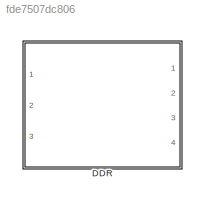
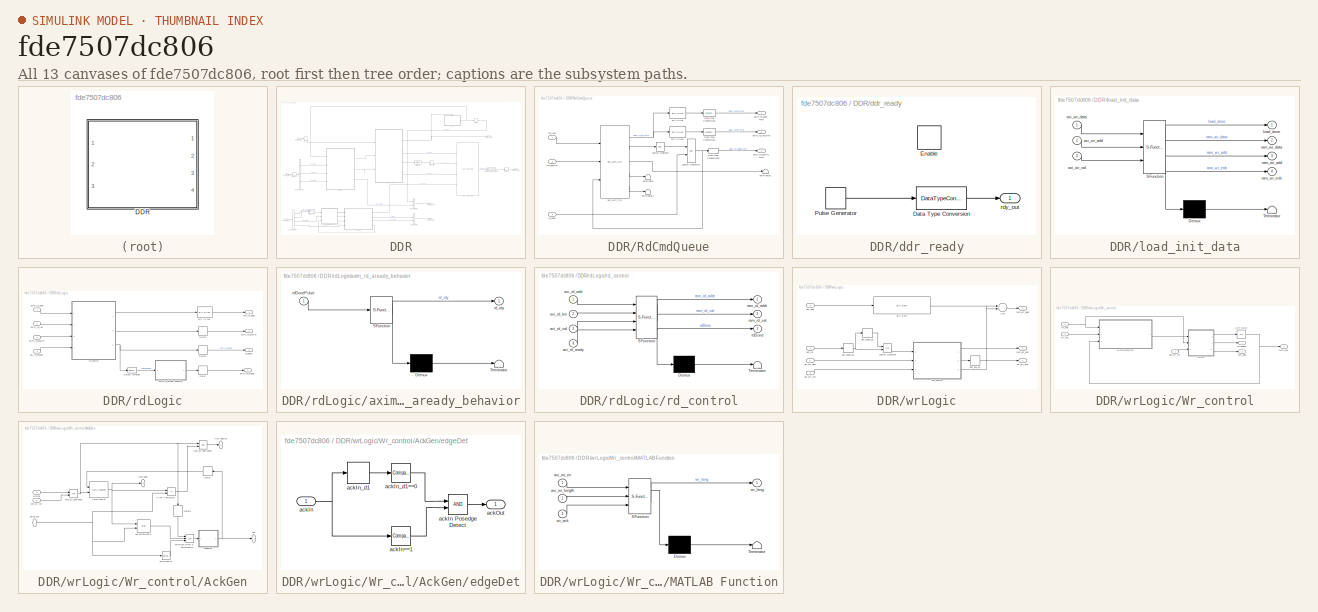
[diagram: thumbnail index - all 13 canvases of the model, root first then tree order]
MODEL slx_fde7507dc806
KIND library
CONFIG AbsTol = auto
CONFIG EnableMultiTasking = off
CONFIG FixedStep = auto
CONFIG MaxStep = auto
CONFIG MinStep = auto
CONFIG RelTol = 1e-3
CONFIG SampleTimeConstraint = Unconstrained
CONFIG Solver = VariableStepAuto
CONFIG SolverName = VariableStepAuto
CONFIG StartTime = 0.0
CONFIG StopTime = 10.0
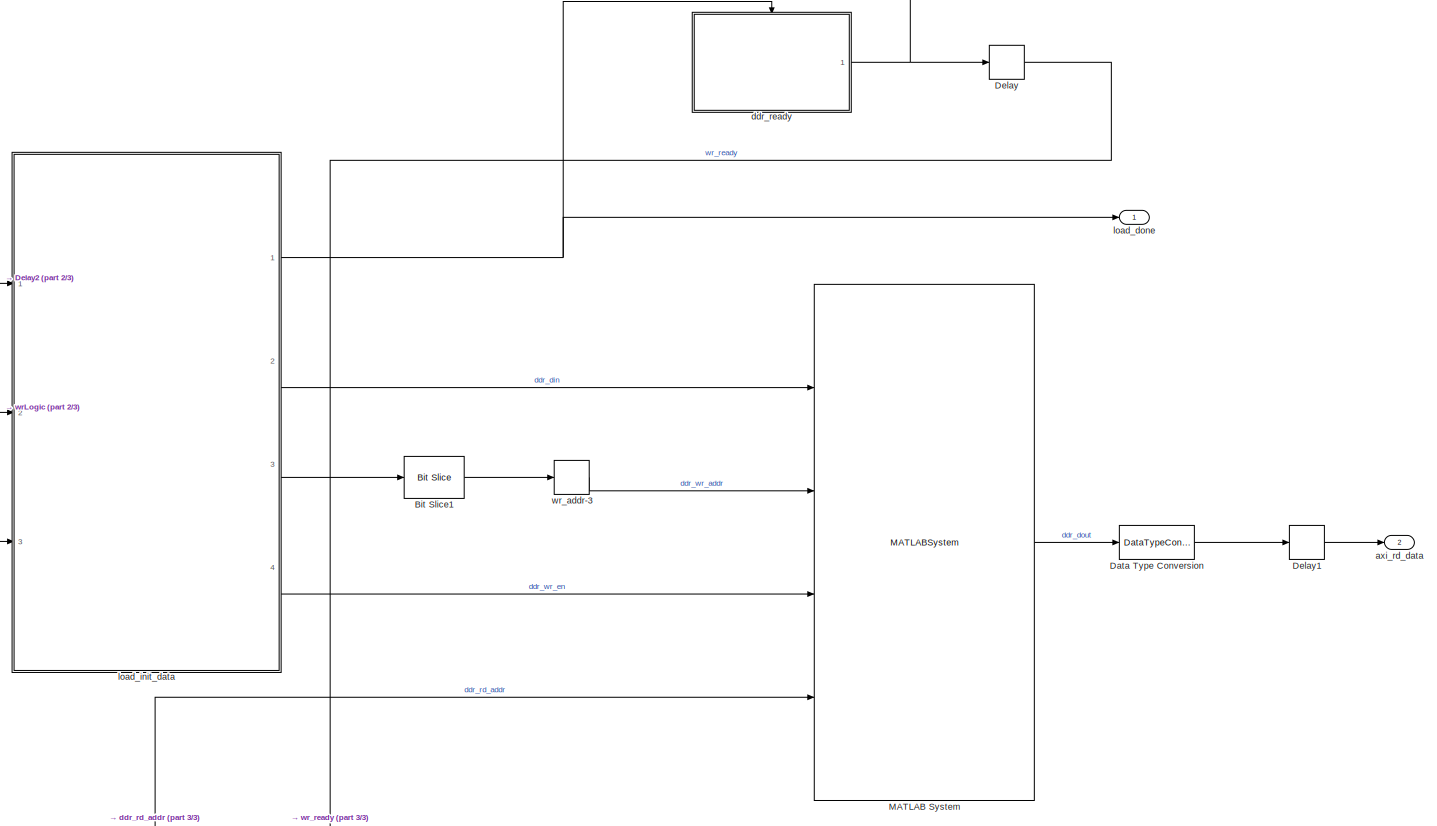
[diagram: DDR - part 1/3, middle right region]
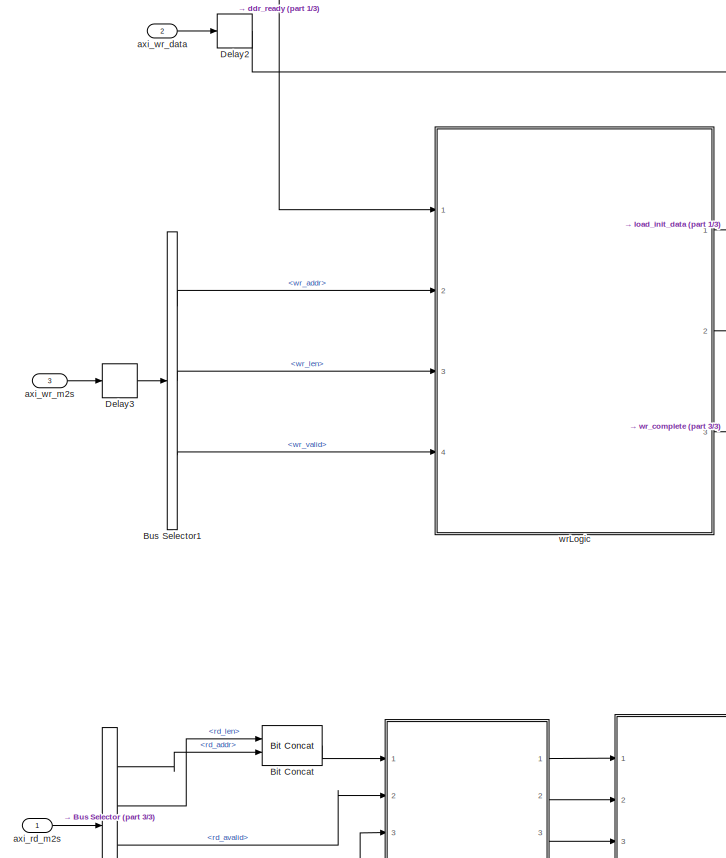
[diagram: DDR - part 2/3, middle left region]
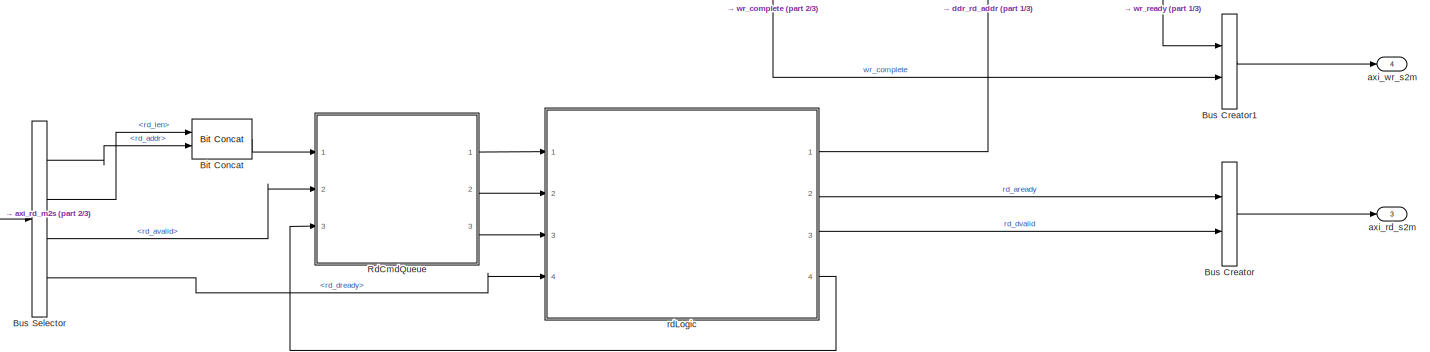
[diagram: DDR - part 3/3, bottom center region]
BLOCK [SubSystem] DDR
  Ports = [3, 4]
  RequestExecContextInheritance = off
  ShowPortLabels = FromPortBlockName
BLOCK [Reference] DDR/Bit Concat  REF=hdlsllib/Logic and Bit
Operations/Bit Concat
  Ports = [2, 1]
  SourceBlock = hdlsllib/Logic and Bit\nOperations/Bit Concat
  SourceProductBaseCode = SL
  SourceProductName = Simulink
  SourceType = Bit Concat
BLOCK [Reference] DDR/Bit Slice1  REF=hdlsllib/Logic and Bit
Operations/Bit Slice
  Ports = [1, 1]
  SourceBlock = hdlsllib/Logic and Bit\nOperations/Bit Slice
  SourceProductBaseCode = HD
  SourceProductName = HDL Coder
  SourceType = Bit Slice
BLOCK [BusCreator] DDR/Bus Creator
  DisplayOption = bar
  InheritFromInputs = on
  Inputs = 2
  Ports = [2, 1]
BLOCK [BusCreator] DDR/Bus Creator1
  DisplayOption = bar
  InheritFromInputs = on
  Inputs = 2
  Ports = [2, 1]
BLOCK [BusSelector] DDR/Bus Selector
  OutputAsBus = off
  OutputSignals = rd_addr,rd_len,rd_avalid,rd_dready
  Ports = [1, 4]
BLOCK [BusSelector] DDR/Bus Selector1
  OutputAsBus = off
  OutputSignals = wr_addr,wr_len,wr_valid
  Ports = [1, 3]
BLOCK [DataTypeConversion] DDR/Data Type Conversion
  RndMeth = Floor
  SaturateOnIntegerOverflow = off
BLOCK [Delay] DDR/Delay
  InputPortMap = u0
  Ports = [1, 1]
BLOCK [Delay] DDR/Delay1
  DelayLength = 1
  InputPortMap = u0
  Ports = [1, 1]
BLOCK [Delay] DDR/Delay2
  DelayLength = 1
  InputPortMap = u0
  Ports = [1, 1]
BLOCK [Delay] DDR/Delay3
  DelayLength = 1
  InputPortMap = u0
  Ports = [1, 1]
BLOCK [MATLABSystem] DDR/MATLAB System
  MaskDisplay = disp(['Simple' char(10) 'Dual Port' char(10) 'RAM']);\nport_label('input',1,'din');\nport_label('input',2,'wr_addr');\nport_label('input',3,'wr_en');\nport_label('input',4,'rd_addr');\nport_label('output',1,'rd_dout');
  MaskType = hdl.RAM
  Ports = [4, 1]
  RAMInitialValue = 0
  RAMType = Simple dual port
  SimulateUsing = Code generation
  System = hdl.RAM
  WriteOutputValue = New data
BLOCK [SubSystem] DDR/RdCmdQueue
  Ports = [3, 3]
  RequestExecContextInheritance = off
BLOCK [Inport] DDR/RdCmdQueue/<rd_avalid>
  IconDisplay = Port number
  Port = 2
BLOCK [Inport] DDR/RdCmdQueue/<rd_len>
  IconDisplay = Port number
BLOCK [Reference] DDR/RdCmdQueue/Bit Slice  REF=hdlsllib/Logic and Bit
Operations/Bit Slice
  Ports = [1, 1]
  SourceBlock = hdlsllib/Logic and Bit\nOperations/Bit Slice
  SourceProductBaseCode = SL
  SourceProductName = Simulink
  SourceType = Bit Slice
BLOCK [Reference] DDR/RdCmdQueue/Bit Slice1  REF=hdlsllib/Logic and Bit
Operations/Bit Slice
  Ports = [1, 1]
  SourceBlock = hdlsllib/Logic and Bit\nOperations/Bit Slice
  SourceProductBaseCode = SL
  SourceProductName = Simulink
  SourceType = Bit Slice
BLOCK [DataTypeConversion] DDR/RdCmdQueue/Data Type Conversion1
  OutDataTypeStr = uint32
  RndMeth = Floor
  SaturateOnIntegerOverflow = off
BLOCK [DataTypeConversion] DDR/RdCmdQueue/Data Type Conversion2
  OutDataTypeStr = uint32
  RndMeth = Floor
  SaturateOnIntegerOverflow = off
BLOCK [DataTypeConversion] DDR/RdCmdQueue/Data Type Conversion3
  OutDataTypeStr = boolean
  RndMeth = Floor
  SaturateOnIntegerOverflow = off
BLOCK [Logic] DDR/RdCmdQueue/Logical Operator
  AllPortsSameDT = off
  IconShape = distinctive
  Operator = NOT
  OutDataTypeStr = boolean
  Ports = [1, 1]
BLOCK [Logic] DDR/RdCmdQueue/Logical Operator1
  AllPortsSameDT = off
  IconShape = distinctive
  OutDataTypeStr = boolean
  Ports = [2, 1]
BLOCK [Terminator] DDR/RdCmdQueue/Terminator
BLOCK [Terminator] DDR/RdCmdQueue/Terminator1
BLOCK [Terminator] DDR/RdCmdQueue/Terminator2
BLOCK [Outport] DDR/RdCmdQueue/axim_rd_addr_FIFO
  IconDisplay = Port number
  VectorParamsAs1DForOutWhenUnconnected = off
BLOCK [Outport] DDR/RdCmdQueue/axim_rd_avalid_FIFO
  IconDisplay = Port number
  Port = 3
BLOCK [Outport] DDR/RdCmdQueue/axim_rd_len_FIFO
  IconDisplay = Port number
  Port = 2
BLOCK [Reference] DDR/RdCmdQueue/hdl_fwft_fifo  REF=AXIDMALib/Hardware/hdl_fwft_fifo
  Ports = [3, 5]
  SourceBlock = AXIDMALib/Hardware/hdl_fwft_fifo
BLOCK [Inport] DDR/RdCmdQueue/rd_done
  IconDisplay = Port number
  Port = 3
BLOCK [Outport] DDR/axi_rd_data
  IconDisplay = Port number
  OutDataTypeStr = fixdt(0,128,0)
  Port = 2
  VectorParamsAs1DForOutWhenUnconnected = off
BLOCK [Inport] DDR/axi_rd_m2s
  IconDisplay = Port number
BLOCK [Outport] DDR/axi_rd_s2m
  IconDisplay = Port number
  Port = 3
  VectorParamsAs1DForOutWhenUnconnected = off
BLOCK [Inport] DDR/axi_wr_data
  IconDisplay = Port number
  OutDataTypeStr = fixdt(0,128,0)
  Port = 2
BLOCK [Inport] DDR/axi_wr_m2s
  IconDisplay = Port number
  Port = 3
BLOCK [Outport] DDR/axi_wr_s2m
  IconDisplay = Port number
  Port = 4
  VectorParamsAs1DForOutWhenUnconnected = off
BLOCK [SubSystem] DDR/ddr_ready
  Ports = [0, 1, 1]
  RequestExecContextInheritance = off
BLOCK [DataTypeConversion] DDR/ddr_ready/Data Type Conversion
  OutDataTypeStr = boolean
  RndMeth = Floor
  SaturateOnIntegerOverflow = off
BLOCK [EnablePort] DDR/ddr_ready/Enable
  Ports = []
BLOCK [DiscretePulseGenerator] DDR/ddr_ready/Pulse Generator
  Period = 1000
  Ports = [0, 1]
  PulseWidth = 1000 * READY_DUTY_CYL
  SampleTime = -1
BLOCK [Outport] DDR/ddr_ready/rdy_out
  IconDisplay = Port number
  VectorParamsAs1DForOutWhenUnconnected = off
BLOCK [Outport] DDR/load_done
  IconDisplay = Port number
  VectorParamsAs1DForOutWhenUnconnected = off
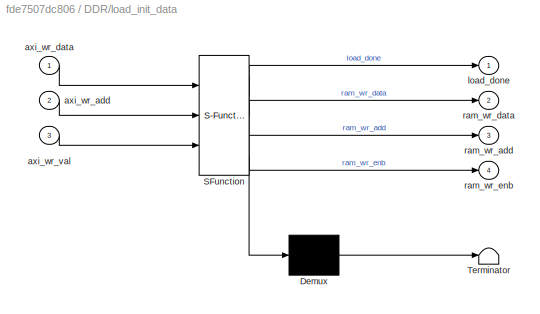
BLOCK [SubSystem] DDR/load_init_data
  ErrorFcn = Stateflow.Translate.translate
  PermitHierarchicalResolution = ExplicitOnly
  Ports = [3, 4]
  RequestExecContextInheritance = off
  SFBlockType = MATLAB Function
  TreatAsAtomicUnit = on
BLOCK [Demux] DDR/load_init_data/ Demux 
  Outputs = 1
  Ports = [1, 1]
BLOCK [S-Function] DDR/load_init_data/ SFunction 
  EnableBusSupport = off
  FunctionName = sf_sfun
  Parameters = DDR3_DEPTH,INIT_ADDR,INIT_DATA,INIT_DDR3
  PortCounts = [3 5]
  Ports = [3, 5]
  SFcnIsStateOwnerBlock = off
  SFunctionDeploymentMode = off
  Tag = Stateflow S-Function 1
BLOCK [Terminator] DDR/load_init_data/ Terminator 
BLOCK [Inport] DDR/load_init_data/axi_wr_add
  IconDisplay = Port number
  Port = 2
BLOCK [Inport] DDR/load_init_data/axi_wr_data
  IconDisplay = Port number
BLOCK [Inport] DDR/load_init_data/axi_wr_val
  IconDisplay = Port number
  Port = 3
BLOCK [Outport] DDR/load_init_data/load_done
  IconDisplay = Port number
  VectorParamsAs1DForOutWhenUnconnected = off
BLOCK [Outport] DDR/load_init_data/ram_wr_add
  IconDisplay = Port number
  Port = 3
  VectorParamsAs1DForOutWhenUnconnected = off
BLOCK [Outport] DDR/load_init_data/ram_wr_data
  IconDisplay = Port number
  Port = 2
  VectorParamsAs1DForOutWhenUnconnected = off
BLOCK [Outport] DDR/load_init_data/ram_wr_enb
  IconDisplay = Port number
  Port = 4
  VectorParamsAs1DForOutWhenUnconnected = off
BLOCK [SubSystem] DDR/rdLogic
  Ports = [4, 4]
  RequestExecContextInheritance = off
BLOCK [Reference] DDR/rdLogic/Bit Slice1  REF=hdlsllib/Logic and Bit
Operations/Bit Slice
  Ports = [1, 1]
  SourceBlock = hdlsllib/Logic and Bit\nOperations/Bit Slice
  SourceProductBaseCode = HD
  SourceProductName = HDL Coder
  SourceType = Bit Slice
BLOCK [Delay] DDR/rdLogic/Delay
  DelayLength = 1
  InputPortMap = u0
  Ports = [1, 1]
BLOCK [Delay] DDR/rdLogic/Delay1
  DelayLength = 1
  InputPortMap = u0
  Ports = [1, 1]
BLOCK [Delay] DDR/rdLogic/Delay2
  InputPortMap = u0
  Ports = [1, 1]
BLOCK [Reference] DDR/rdLogic/Detect Increase  REF=simulink/Logic and Bit
Operations/Detect
Increase
  Ports = [1, 1]
  SourceBlock = simulink/Logic and Bit\nOperations/Detect\nIncrease
  SourceProductBaseCode = SL
  SourceProductName = Simulink
  SourceType = Detect Increase
BLOCK [Inport] DDR/rdLogic/axi_rd_dready
  IconDisplay = Port number
  Port = 4
BLOCK [Inport] DDR/rdLogic/axim_rd_addr
  IconDisplay = Port number
BLOCK [Outport] DDR/rdLogic/axim_rd_aready
  IconDisplay = Port number
  Port = 2
  VectorParamsAs1DForOutWhenUnconnected = off
BLOCK [SubSystem] DDR/rdLogic/axim_rd_aready_behavior
  ErrorFcn = Stateflow.Translate.translate
  PermitHierarchicalResolution = ExplicitOnly
  Ports = [1, 1]
  RequestExecContextInheritance = off
  SFBlockType = MATLAB Function
  TreatAsAtomicUnit = on
BLOCK [Demux] DDR/rdLogic/axim_rd_aready_behavior/ Demux 
  Outputs = 1
  Ports = [1, 1]
BLOCK [S-Function] DDR/rdLogic/axim_rd_aready_behavior/ SFunction 
  EnableBusSupport = off
  FunctionName = sf_sfun
  PortCounts = [1 2]
  Ports = [1, 2]
  SFcnIsStateOwnerBlock = off
  SFunctionDeploymentMode = off
  Tag = Stateflow S-Function 10
BLOCK [Terminator] DDR/rdLogic/axim_rd_aready_behavior/ Terminator 
BLOCK [Inport] DDR/rdLogic/axim_rd_aready_behavior/rdDonePulse
  IconDisplay = Port number
BLOCK [Outport] DDR/rdLogic/axim_rd_aready_behavior/rd_rdy
  IconDisplay = Port number
BLOCK [Inport] DDR/rdLogic/axim_rd_avalid
  IconDisplay = Port number
  Port = 3
BLOCK [Outport] DDR/rdLogic/axim_rd_dvalid
  IconDisplay = Port number
  Port = 3
  VectorParamsAs1DForOutWhenUnconnected = off
BLOCK [Inport] DDR/rdLogic/axim_rd_len
  IconDisplay = Port number
  Port = 2
BLOCK [Outport] DDR/rdLogic/ram_rd_addr
  IconDisplay = Port number
  VectorParamsAs1DForOutWhenUnconnected = off
BLOCK [SubSystem] DDR/rdLogic/rd_control
  ErrorFcn = Stateflow.Translate.translate
  PermitHierarchicalResolution = ExplicitOnly
  Ports = [4, 3]
  RequestExecContextInheritance = off
  SFBlockType = MATLAB Function
  TreatAsAtomicUnit = on
BLOCK [Demux] DDR/rdLogic/rd_control/ Demux 
  Outputs = 1
  Ports = [1, 1]
BLOCK [S-Function] DDR/rdLogic/rd_control/ SFunction 
  EnableBusSupport = off
  FunctionName = sf_sfun
  Parameters = WR_RD_DATAWIDTH,toggle
  PortCounts = [4 4]
  Ports = [4, 4]
  SFcnIsStateOwnerBlock = off
  SFunctionDeploymentMode = off
  Tag = Stateflow S-Function 6
BLOCK [Terminator] DDR/rdLogic/rd_control/ Terminator 
BLOCK [Inport] DDR/rdLogic/rd_control/axi_rd_add
  IconDisplay = Port number
BLOCK [Inport] DDR/rdLogic/rd_control/axi_rd_len
  IconDisplay = Port number
  Port = 2
BLOCK [Inport] DDR/rdLogic/rd_control/axi_rd_ready
  IconDisplay = Port number
  Port = 4
BLOCK [Inport] DDR/rdLogic/rd_control/axi_rd_val
  IconDisplay = Port number
  Port = 3
BLOCK [Outport] DDR/rdLogic/rd_control/ram_rd_addr
  IconDisplay = Port number
  VectorParamsAs1DForOutWhenUnconnected = off
BLOCK [Outport] DDR/rdLogic/rd_control/ram_rd_val
  IconDisplay = Port number
  Port = 2
  VectorParamsAs1DForOutWhenUnconnected = off
BLOCK [Outport] DDR/rdLogic/rd_control/rdDone
  IconDisplay = Port number
  Port = 3
BLOCK [Outport] DDR/rdLogic/rd_done
  IconDisplay = Port number
  Port = 4
  VectorParamsAs1DForOutWhenUnconnected = off
BLOCK [SubSystem] DDR/wrLogic
  Ports = [4, 3]
  RequestExecContextInheritance = off
BLOCK [Sum] DDR/wrLogic/Add
  AccumDataTypeStr = uint32
  InputSameDT = off
  OutDataTypeStr = Inherit: Inherit via internal rule
  Ports = [2, 1]
  SaturateOnIntegerOverflow = off
BLOCK [Reference] DDR/wrLogic/Bit Shift  REF=hdlsllib/Logic and Bit
Operations/Bit Shift
  Ports = [1, 1]
  SourceBlock = hdlsllib/Logic and Bit\nOperations/Bit Shift
  SourceProductBaseCode = HD
  SourceProductName = HDL Coder
  SourceType = Bit Shift
BLOCK [Logic] DDR/wrLogic/Logical Operator
  AllPortsSameDT = off
  IconShape = distinctive
  Operator = OR
  OutDataTypeStr = boolean
  Ports = [2, 1]
BLOCK [SubSystem] DDR/wrLogic/Wr_control
  Ports = [3, 3]
  RequestExecContextInheritance = off
BLOCK [SubSystem] DDR/wrLogic/Wr_control/AckGen
  Ports = [3, 3]
  RequestExecContextInheritance = off
BLOCK [Delay] DDR/wrLogic/Wr_control/AckGen/Delay
  DelayLength = 1
  InputPortMap = u0
  Ports = [1, 1]
BLOCK [Delay] DDR/wrLogic/Wr_control/AckGen/Delay1
  DelayLength = 1
  InputPortMap = u0
  Ports = [1, 1]
BLOCK [Outport] DDR/wrLogic/Wr_control/AckGen/ValAddEnb
  IconDisplay = Port number
  Port = 2
  VectorParamsAs1DForOutWhenUnconnected = off
BLOCK [Reference] DDR/wrLogic/Wr_control/AckGen/ValwrLenCnt  REF=hdlsllib/Sources/HDL Counter
  Ports = [2, 1]
  SourceBlock = hdlsllib/Sources/HDL Counter
  SourceProductBaseCode = HD
  SourceProductName = HDL Coder
  SourceType = HDL Counter
BLOCK [Outport] DDR/wrLogic/Wr_control/AckGen/ack
  IconDisplay = Port number
  VectorParamsAs1DForOutWhenUnconnected = off
BLOCK [Inport] DDR/wrLogic/Wr_control/AckGen/axiWrLen
  IconDisplay = Port number
BLOCK [Reference] DDR/wrLogic/Wr_control/AckGen/axiWrLen!=0  REF=simulink/Logic and Bit
Operations/Compare
To Constant
  Ports = [1, 1]
  SourceBlock = simulink/Logic and Bit\nOperations/Compare\nTo Constant
  SourceProductBaseCode = SL
  SourceProductName = Simulink
  SourceType = Compare To Constant
BLOCK [Logic] DDR/wrLogic/Wr_control/AckGen/axiWrLen-1==cnt & axiWrLen!=0 
  AllPortsSameDT = off
  IconShape = distinctive
  Inputs = 3
  OutDataTypeStr = boolean
  Ports = [3, 1]
BLOCK [RelationalOperator] DDR/wrLogic/Wr_control/AckGen/axiWrLen==cnt+1
  InputSameDT = off
  Operator = ==
  OutDataTypeStr = boolean
  Ports = [2, 1]
BLOCK [Inport] DDR/wrLogic/Wr_control/AckGen/ddr_wr_rdy
  IconDisplay = Port number
  Port = 3
BLOCK [SubSystem] DDR/wrLogic/Wr_control/AckGen/edgeDet
  Ports = [1, 1]
  RequestExecContextInheritance = off
BLOCK [Reference] DDR/wrLogic/Wr_control/AckGen/edgeDet/ ackIn==1  REF=simulink/Logic and Bit
Operations/Compare
To Constant
  Ports = [1, 1]
  SourceBlock = simulink/Logic and Bit\nOperations/Compare\nTo Constant
  SourceProductBaseCode = SL
  SourceProductName = Simulink
  SourceType = Compare To Constant
BLOCK [Inport] DDR/wrLogic/Wr_control/AckGen/edgeDet/ackIn
  IconDisplay = Port number
BLOCK [Logic] DDR/wrLogic/Wr_control/AckGen/edgeDet/ackIn Posedge Detect
  AllPortsSameDT = off
  IconShape = distinctive
  OutDataTypeStr = boolean
  Ports = [2, 1]
BLOCK [Delay] DDR/wrLogic/Wr_control/AckGen/edgeDet/ackIn_d1
  DelayLength = 1
  InputPortMap = u0
  Ports = [1, 1]
BLOCK [Reference] DDR/wrLogic/Wr_control/AckGen/edgeDet/ackIn_d1==0  REF=simulink/Logic and Bit
Operations/Compare
To Constant
  Ports = [1, 1]
  SourceBlock = simulink/Logic and Bit\nOperations/Compare\nTo Constant
  SourceProductBaseCode = SL
  SourceProductName = Simulink
  SourceType = Compare To Constant
BLOCK [Outport] DDR/wrLogic/Wr_control/AckGen/edgeDet/ackOut
  IconDisplay = Port number
  VectorParamsAs1DForOutWhenUnconnected = off
BLOCK [RelationalOperator] DDR/wrLogic/Wr_control/AckGen/if cnt < axiWrLen
  InputSameDT = off
  Operator = <=
  OutDataTypeStr = boolean
  Ports = [2, 1]
BLOCK [Outport] DDR/wrLogic/Wr_control/AckGen/ram_addr
  IconDisplay = Port number
  Port = 3
  VectorParamsAs1DForOutWhenUnconnected = off
BLOCK [Logic] DDR/wrLogic/Wr_control/AckGen/ram_wr_enb cond
  AllPortsSameDT = off
  IconShape = distinctive
  OutDataTypeStr = boolean
  Ports = [2, 1]
BLOCK [Logic] DDR/wrLogic/Wr_control/AckGen/ram_wr_enb cond1
  AllPortsSameDT = off
  IconShape = distinctive
  OutDataTypeStr = boolean
  Ports = [2, 1]
BLOCK [Inport] DDR/wrLogic/Wr_control/AckGen/wrEnb
  IconDisplay = Port number
  Port = 2
BLOCK [SubSystem] DDR/wrLogic/Wr_control/MATLAB Function
  ErrorFcn = Stateflow.Translate.translate
  PermitHierarchicalResolution = ExplicitOnly
  Ports = [3, 1]
  RequestExecContextInheritance = off
  SFBlockType = MATLAB Function
  TreatAsAtomicUnit = on
BLOCK [Demux] DDR/wrLogic/Wr_control/MATLAB Function/ Demux 
  Outputs = 1
  Ports = [1, 1]
BLOCK [S-Function] DDR/wrLogic/Wr_control/MATLAB Function/ SFunction 
  EnableBusSupport = off
  FunctionName = sf_sfun
  PortCounts = [3 2]
  Ports = [3, 2]
  SFcnIsStateOwnerBlock = off
  SFunctionDeploymentMode = off
  Tag = Stateflow S-Function 8
BLOCK [Terminator] DDR/wrLogic/Wr_control/MATLAB Function/ Terminator 
BLOCK [Inport] DDR/wrLogic/Wr_control/MATLAB Function/axi_wr_en
  IconDisplay = Port number
BLOCK [Inport] DDR/wrLogic/Wr_control/MATLAB Function/axi_wr_length
  IconDisplay = Port number
  Port = 2
BLOCK [Inport] DDR/wrLogic/Wr_control/MATLAB Function/wr_ack
  IconDisplay = Port number
  Port = 3
BLOCK [Outport] DDR/wrLogic/Wr_control/MATLAB Function/wr_leng
  IconDisplay = Port number
  VectorParamsAs1DForOutWhenUnconnected = off
BLOCK [UnitDelay] DDR/wrLogic/Wr_control/Unit Delay
  HasFrameUpgradeWarning = on
  SampleTime = -1
BLOCK [Outport] DDR/wrLogic/Wr_control/axim_ack
  IconDisplay = Port number
  Port = 2
  VectorParamsAs1DForOutWhenUnconnected = off
BLOCK [Inport] DDR/wrLogic/Wr_control/ddr_wr_rdy
  IconDisplay = Port number
BLOCK [Outport] DDR/wrLogic/Wr_control/ram_addr
  IconDisplay = Port number
  Port = 3
  VectorParamsAs1DForOutWhenUnconnected = off
BLOCK [Outport] DDR/wrLogic/Wr_control/valAddEnb
  IconDisplay = Port number
  VectorParamsAs1DForOutWhenUnconnected = off
BLOCK [Inport] DDR/wrLogic/Wr_control/wr_enb
  IconDisplay = Port number
  Port = 2
BLOCK [Inport] DDR/wrLogic/Wr_control/wr_len
  IconDisplay = Port number
  Port = 3
BLOCK [Inport] DDR/wrLogic/axi_addr
  IconDisplay = Port number
  Port = 2
BLOCK [Outport] DDR/wrLogic/axi_wr_ack
  IconDisplay = Port number
  Port = 3
  VectorParamsAs1DForOutWhenUnconnected = off
BLOCK [Inport] DDR/wrLogic/axi_wr_enb
  IconDisplay = Port number
  Port = 4
BLOCK [Inport] DDR/wrLogic/axi_wr_len
  IconDisplay = Port number
  Port = 3
BLOCK [Delay] DDR/wrLogic/ddr_ack_d1
  DelayLength = 1
  InputPortMap = u0
  Ports = [1, 1]
BLOCK [Inport] DDR/wrLogic/ddr_rdy
  IconDisplay = Port number
BLOCK [Delay] DDR/wrLogic/ddr_reday_d1
  DelayLength = 1
  InputPortMap = u0
  Ports = [1, 1]
BLOCK [Delay] DDR/wrLogic/ddr_reday_d6
  DelayLength = 4
  InputPortMap = u0
  Ports = [1, 1]
BLOCK [Outport] DDR/wrLogic/ram_wr_addr
  IconDisplay = Port number
  VectorParamsAs1DForOutWhenUnconnected = off
BLOCK [Outport] DDR/wrLogic/ram_wr_enb
  IconDisplay = Port number
  Port = 2
  VectorParamsAs1DForOutWhenUnconnected = off
BLOCK [Delay] DDR/wr_addr-3
  DelayLength = 1
  InputPortMap = u0
  Ports = [1, 1]
LINE DDR/Bit Concat:1 -> DDR/RdCmdQueue:1
LINE DDR/Bit Slice1:1 -> DDR/wr_addr-3:1
LINE DDR/Bus Creator1:1 -> DDR/axi_wr_s2m:1
LINE DDR/Bus Creator:1 -> DDR/axi_rd_s2m:1
LINE DDR/Bus Selector1:1 -> DDR/wrLogic:2
LINE DDR/Bus Selector1:2 -> DDR/wrLogic:3
LINE DDR/Bus Selector1:3 -> DDR/wrLogic:4
LINE DDR/Bus Selector:1 -> DDR/Bit Concat:2
LINE DDR/Bus Selector:2 -> DDR/Bit Concat:1
LINE DDR/Bus Selector:3 -> DDR/RdCmdQueue:2
LINE DDR/Bus Selector:4 -> DDR/rdLogic:4
LINE DDR/Data Type Conversion:1 -> DDR/Delay1:1
LINE DDR/Delay1:1 -> DDR/axi_rd_data:1
LINE DDR/Delay2:1 -> DDR/load_init_data:1
LINE DDR/Delay3:1 -> DDR/Bus Selector1:1
LINE DDR/Delay:1 -> DDR/Bus Creator1:1
LINE DDR/MATLAB System:1 -> DDR/Data Type Conversion:1
LINE DDR/RdCmdQueue/<rd_avalid>:1 -> DDR/RdCmdQueue/hdl_fwft_fifo:2
LINE DDR/RdCmdQueue/<rd_len>:1 -> DDR/RdCmdQueue/hdl_fwft_fifo:1
LINE DDR/RdCmdQueue/Bit Slice1:1 -> DDR/RdCmdQueue/Data Type Conversion1:1
LINE DDR/RdCmdQueue/Bit Slice:1 -> DDR/RdCmdQueue/Data Type Conversion2:1
LINE DDR/RdCmdQueue/Data Type Conversion1:1 -> DDR/RdCmdQueue/axim_rd_len_FIFO:1
LINE DDR/RdCmdQueue/Data Type Conversion2:1 -> DDR/RdCmdQueue/axim_rd_addr_FIFO:1
LINE DDR/RdCmdQueue/Data Type Conversion3:1 -> DDR/RdCmdQueue/axim_rd_avalid_FIFO:1
NET DDR/RdCmdQueue/Logical Operator1:1 -> DDR/RdCmdQueue/Data Type Conversion3:1, DDR/RdCmdQueue/hdl_fwft_fifo:3
LINE DDR/RdCmdQueue/Logical Operator:1 -> DDR/RdCmdQueue/Logical Operator1:1
NET DDR/RdCmdQueue/hdl_fwft_fifo:1 -> DDR/RdCmdQueue/Bit Slice1:1, DDR/RdCmdQueue/Bit Slice:1
LINE DDR/RdCmdQueue/hdl_fwft_fifo:2 -> DDR/RdCmdQueue/Logical Operator:1
LINE DDR/RdCmdQueue/hdl_fwft_fifo:3 -> DDR/RdCmdQueue/Terminator1:1
LINE DDR/RdCmdQueue/hdl_fwft_fifo:4 -> DDR/RdCmdQueue/Terminator:1
LINE DDR/RdCmdQueue/hdl_fwft_fifo:5 -> DDR/RdCmdQueue/Terminator2:1
LINE DDR/RdCmdQueue/rd_done:1 -> DDR/RdCmdQueue/Logical Operator1:2
LINE DDR/RdCmdQueue:1 -> DDR/rdLogic:1
LINE DDR/RdCmdQueue:2 -> DDR/rdLogic:2
LINE DDR/RdCmdQueue:3 -> DDR/rdLogic:3
LINE DDR/axi_rd_m2s:1 -> DDR/Bus Selector:1
LINE DDR/axi_wr_data:1 -> DDR/Delay2:1
LINE DDR/axi_wr_m2s:1 -> DDR/Delay3:1
LINE DDR/ddr_ready/Data Type Conversion:1 -> DDR/ddr_ready/rdy_out:1
LINE DDR/ddr_ready/Pulse Generator:1 -> DDR/ddr_ready/Data Type Conversion:1
NET DDR/ddr_ready:1 -> DDR/Delay:1, DDR/wrLogic:1
NET DDR/load_init_data:1 -> DDR/ddr_ready:enable, DDR/load_done:1
LINE DDR/load_init_data:2 -> DDR/MATLAB System:1
LINE DDR/load_init_data:3 -> DDR/Bit Slice1:1
LINE DDR/load_init_data:4 -> DDR/MATLAB System:3
LINE DDR/rdLogic/Bit Slice1:1 -> DDR/rdLogic/ram_rd_addr:1
LINE DDR/rdLogic/Delay1:1 -> DDR/rdLogic/rd_done:1
LINE DDR/rdLogic/Delay2:1 -> DDR/rdLogic/axim_rd_dvalid:1
LINE DDR/rdLogic/Delay:1 -> DDR/rdLogic/axim_rd_aready:1
LINE DDR/rdLogic/Detect Increase:1 -> DDR/rdLogic/axim_rd_aready_behavior:1
LINE DDR/rdLogic/axi_rd_dready:1 -> DDR/rdLogic/rd_control:4
LINE DDR/rdLogic/axim_rd_addr:1 -> DDR/rdLogic/rd_control:1
LINE DDR/rdLogic/axim_rd_aready_behavior:1 -> DDR/rdLogic/Delay:1
LINE DDR/rdLogic/axim_rd_avalid:1 -> DDR/rdLogic/rd_control:3
LINE DDR/rdLogic/axim_rd_len:1 -> DDR/rdLogic/rd_control:2
LINE DDR/rdLogic/rd_control:1 -> DDR/rdLogic/Bit Slice1:1
LINE DDR/rdLogic/rd_control:2 -> DDR/rdLogic/Delay2:1
NET DDR/rdLogic/rd_control:3 -> DDR/rdLogic/Delay1:1, DDR/rdLogic/Detect Increase:1
LINE DDR/rdLogic:1 -> DDR/MATLAB System:4
LINE DDR/rdLogic:2 -> DDR/Bus Creator:1
LINE DDR/rdLogic:3 -> DDR/Bus Creator:2
LINE DDR/rdLogic:4 -> DDR/RdCmdQueue:3
LINE DDR/wrLogic/Add:1 -> DDR/wrLogic/ram_wr_addr:1
LINE DDR/wrLogic/Bit Shift:1 -> DDR/wrLogic/Add:1
LINE DDR/wrLogic/Logical Operator:1 -> DDR/wrLogic/Wr_control:1
LINE DDR/wrLogic/Wr_control/AckGen/Delay1:1 -> DDR/wrLogic/Wr_control/AckGen/axiWrLen-1==cnt & axiWrLen!=0 :1
LINE DDR/wrLogic/Wr_control/AckGen/Delay:1 -> DDR/wrLogic/Wr_control/AckGen/ValwrLenCnt:1
NET DDR/wrLogic/Wr_control/AckGen/ValwrLenCnt:1 -> DDR/wrLogic/Wr_control/AckGen/axiWrLen==cnt+1:1, DDR/wrLogic/Wr_control/AckGen/if cnt < axiWrLen:1, DDR/wrLogic/Wr_control/AckGen/ram_addr:1
LINE DDR/wrLogic/Wr_control/AckGen/axiWrLen!=0:1 -> DDR/wrLogic/Wr_control/AckGen/axiWrLen-1==cnt & axiWrLen!=0 :3
LINE DDR/wrLogic/Wr_control/AckGen/axiWrLen-1==cnt & axiWrLen!=0 :1 -> DDR/wrLogic/Wr_control/AckGen/edgeDet:1
NET DDR/wrLogic/Wr_control/AckGen/axiWrLen:1 -> DDR/wrLogic/Wr_control/AckGen/axiWrLen!=0:1, DDR/wrLogic/Wr_control/AckGen/axiWrLen==cnt+1:2, DDR/wrLogic/Wr_control/AckGen/if cnt < axiWrLen:2
LINE DDR/wrLogic/Wr_control/AckGen/axiWrLen==cnt+1:1 -> DDR/wrLogic/Wr_control/AckGen/axiWrLen-1==cnt & axiWrLen!=0 :2
LINE DDR/wrLogic/Wr_control/AckGen/ddr_wr_rdy:1 -> DDR/wrLogic/Wr_control/AckGen/ram_wr_enb cond:2
LINE DDR/wrLogic/Wr_control/AckGen/edgeDet/ ackIn==1:1 -> DDR/wrLogic/Wr_control/AckGen/edgeDet/ackIn Posedge Detect:2
LINE DDR/wrLogic/Wr_control/AckGen/edgeDet/ackIn Posedge Detect:1 -> DDR/wrLogic/Wr_control/AckGen/edgeDet/ackOut:1
NET DDR/wrLogic/Wr_control/AckGen/edgeDet/ackIn:1 -> DDR/wrLogic/Wr_control/AckGen/edgeDet/ ackIn==1:1, DDR/wrLogic/Wr_control/AckGen/edgeDet/ackIn_d1:1
LINE DDR/wrLogic/Wr_control/AckGen/edgeDet/ackIn_d1:1 -> DDR/wrLogic/Wr_control/AckGen/edgeDet/ackIn_d1==0:1
LINE DDR/wrLogic/Wr_control/AckGen/edgeDet/ackIn_d1==0:1 -> DDR/wrLogic/Wr_control/AckGen/edgeDet/ackIn Posedge Detect:1
NET DDR/wrLogic/Wr_control/AckGen/edgeDet:1 -> DDR/wrLogic/Wr_control/AckGen/Delay:1, DDR/wrLogic/Wr_control/AckGen/ack:1
LINE DDR/wrLogic/Wr_control/AckGen/if cnt < axiWrLen:1 -> DDR/wrLogic/Wr_control/AckGen/ram_wr_enb cond1:2
LINE DDR/wrLogic/Wr_control/AckGen/ram_wr_enb cond1:1 -> DDR/wrLogic/Wr_control/AckGen/ValAddEnb:1
NET DDR/wrLogic/Wr_control/AckGen/ram_wr_enb cond:1 -> DDR/wrLogic/Wr_control/AckGen/Delay1:1, DDR/wrLogic/Wr_control/AckGen/ValwrLenCnt:2, DDR/wrLogic/Wr_control/AckGen/ram_wr_enb cond1:1
LINE DDR/wrLogic/Wr_control/AckGen/wrEnb:1 -> DDR/wrLogic/Wr_control/AckGen/ram_wr_enb cond:1
LINE DDR/wrLogic/Wr_control/AckGen:1 -> DDR/wrLogic/Wr_control/Unit Delay:1
LINE DDR/wrLogic/Wr_control/AckGen:2 -> DDR/wrLogic/Wr_control/valAddEnb:1
LINE DDR/wrLogic/Wr_control/AckGen:3 -> DDR/wrLogic/Wr_control/ram_addr:1
LINE DDR/wrLogic/Wr_control/MATLAB Function:1 -> DDR/wrLogic/Wr_control/AckGen:1
NET DDR/wrLogic/Wr_control/Unit Delay:1 -> DDR/wrLogic/Wr_control/MATLAB Function:3, DDR/wrLogic/Wr_control/axim_ack:1
LINE DDR/wrLogic/Wr_control/ddr_wr_rdy:1 -> DDR/wrLogic/Wr_control/AckGen:3
NET DDR/wrLogic/Wr_control/wr_enb:1 -> DDR/wrLogic/Wr_control/AckGen:2, DDR/wrLogic/Wr_control/MATLAB Function:1
LINE DDR/wrLogic/Wr_control/wr_len:1 -> DDR/wrLogic/Wr_control/MATLAB Function:2
LINE DDR/wrLogic/Wr_control:1 -> DDR/wrLogic/ram_wr_enb:1
LINE DDR/wrLogic/Wr_control:2 -> DDR/wrLogic/ddr_ack_d1:1
LINE DDR/wrLogic/Wr_control:3 -> DDR/wrLogic/Add:2
LINE DDR/wrLogic/axi_addr:1 -> DDR/wrLogic/Bit Shift:1
LINE DDR/wrLogic/axi_wr_enb:1 -> DDR/wrLogic/Wr_control:2
LINE DDR/wrLogic/axi_wr_len:1 -> DDR/wrLogic/Wr_control:3
LINE DDR/wrLogic/ddr_ack_d1:1 -> DDR/wrLogic/axi_wr_ack:1
LINE DDR/wrLogic/ddr_rdy:1 -> DDR/wrLogic/ddr_reday_d6:1
LINE DDR/wrLogic/ddr_reday_d1:1 -> DDR/wrLogic/Logical Operator:1
NET DDR/wrLogic/ddr_reday_d6:1 -> DDR/wrLogic/Logical Operator:2, DDR/wrLogic/ddr_reday_d1:1
LINE DDR/wrLogic:1 -> DDR/load_init_data:2
LINE DDR/wrLogic:2 -> DDR/load_init_data:3
LINE DDR/wrLogic:3 -> DDR/Bus Creator1:2
LINE DDR/wr_addr-3:1 -> DDR/MATLAB System:2
note: NET lines group one-source signal fan-out (src -> all destinations, sorted); 1:1 wires keep LINE
CHART DDR/load_init_data states=1 transitions=1
  STATE_LABEL 'eML_blk_kernel()'
  STATE_LABEL "SCRIPT:\nfunction [load_done,ram_wr_data,ram_wr_add,ram_wr_enb] = load_init(axi_wr_data,axi_wr_add,axi_wr_val, INIT_ADDR, DDR3_DEPTH, INIT_DDR3,INIT_DATA)\n\n%%%%%%%%%%%%%%%%%%%%%%%%%%%%%%%%%%%%%%%%%%%%%%%%%%%%%%\n% Create persistent variables (registers)\npersistent reg_ram_wr_add;\nif(isempty(reg_ram_wr_add))\n    reg_ram_wr_add = fi(0,0,32,0);\nend\n\nram_wr_data = cast(0,'like',axi_wr_data);\n\npersistent...<+3608ch>"
CHART DDR/rdLogic/rd_control states=1 transitions=1
  STATE_LABEL 'eML_blk_kernel()'
  STATE_LABEL 'SCRIPT:\nfunction [ram_rd_addr, ram_rd_val, rdDone] = rd_add_gen(axi_rd_add,axi_rd_len, axi_rd_val,axi_rd_ready,toggle, WR_RD_DATAWIDTH)\n\n%%%%%%%%%%%%%%%%%%%%%%%%%%%%%%%%%%%%%%%%%%%%%%%%%%%%%%\n%%%Reg declaration\n%RAM address generation counter\npersistent ram_rd_cnt;\n\nRD_BYTE_STRIDE = uint32(WR_RD_DATAWIDTH/8);\nrdDone = false;\n\nif(isempty(ram_rd_cnt))\n    ram_rd_cnt = fi(0,0,32,0);%uint32(0);\nend\n\n%...<+2046ch>'
CHART DDR/wrLogic/Wr_control/MATLAB Function states=1 transitions=1
  STATE_LABEL 'eML_blk_kernel()'
  STATE_LABEL 'SCRIPT:\nfunction wr_leng = addr_latch(axi_wr_en,axi_wr_length,wr_ack)\n%#codegen\n\npersistent axi_wr_en_d1;\nif(isempty(axi_wr_en_d1))\naxi_wr_en_d1 = false;\nend\n\npersistent reg_len;\nif(isempty(reg_len))\n    reg_len = fi(0,0,32,0);%uint32(0);\nend\n\n\npersistent reg_len_d1;\nif(isempty(reg_len_d1))\n    reg_len_d1 = fi(0,0,32,0);%uint32(0);\nend\n\nreg_len_d1 = reg_len;\nwr_leng = reg_len;\n\nif((axi_wr_en==true...<+181ch>'
CHART DDR/rdLogic/axim_rd_aready_behavior states=1 transitions=1
  STATE_LABEL 'eML_blk_kernel()'
  STATE_LABEL 'SCRIPT:\nfunction rd_rdy = aready(rdDonePulse)\n\npersistent rdy_state delay_count\nif isempty(rdy_state)\n    rdy_state = uint32(0);\n    delay_count = uint8(0);\nend\n\nSTATE_IDLE = uint32(0);\nSTATE_WAIT = uint32(1);\nWAIT_TIME = uint16(50);\nrd_rdy = false;\n\n\n\nswitch(rdy_state)\n    case(STATE_IDLE)\n        if rdDonePulse % if a read just completed, wait a few moments\n            rdy_state(:) = STATE_WAIT;...<+362ch>'
